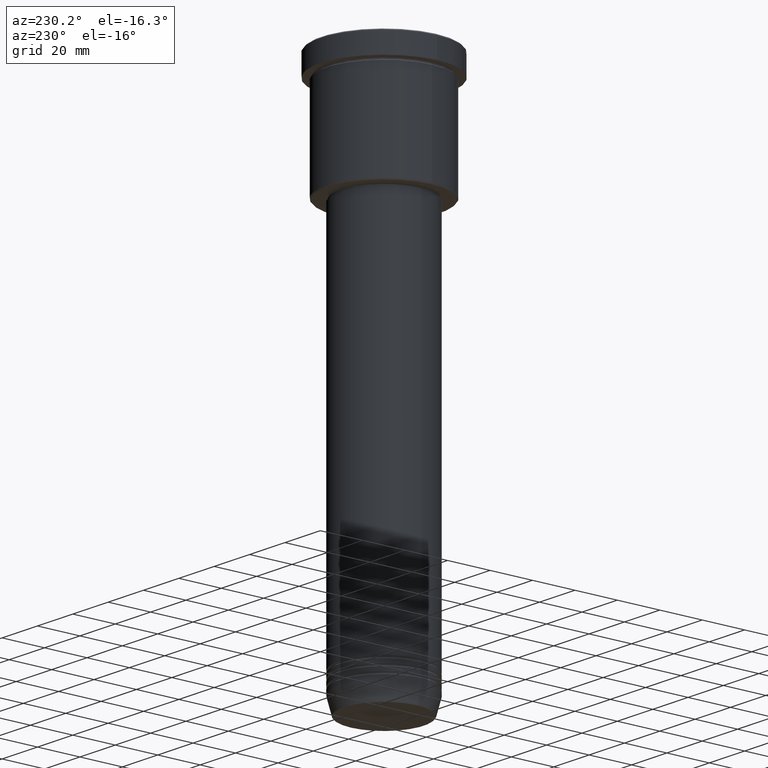
[diagram: clean part render]
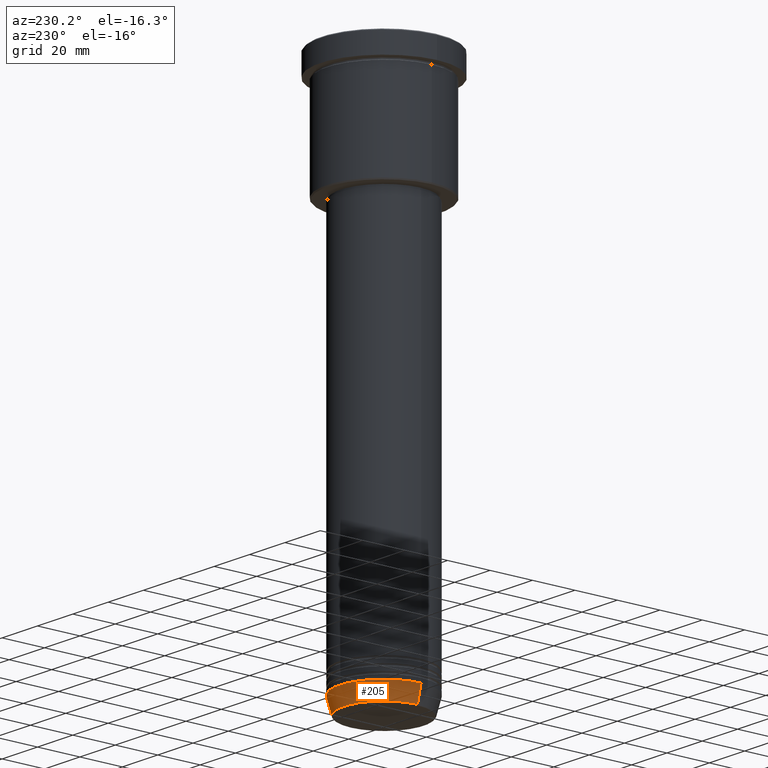
[diagram: same view with one face highlighted and labeled with its STEP entity id]
A machine part, auxiliary view. The second image highlights one B-rep face of the part: STEP entity #205.
In plain terms, the highlighted conical surface has half-angle 15 deg.
Its self-contained STEP definition (entity closure, byte-faithful):
#35 = CARTESIAN_POINT ( 'NONE',  ( 0.000000000000000000, 0.000000000000000000, -243.0000000000000284 ) ) ;
#42 = AXIS2_PLACEMENT_3D ( 'NONE', #35, #1033, #843 ) ;
#52 = CARTESIAN_POINT ( 'NONE',  ( -21.00000000000000000, 2.571758278209441661E-15, -243.0000000000000284 ) ) ;
#81 = ORIENTED_EDGE ( 'NONE', *, *, #923, .F. ) ;
#99 = ORIENTED_EDGE ( 'NONE', *, *, #1064, .F. ) ;
#129 = CARTESIAN_POINT ( 'NONE',  ( 21.00000000000000000, 0.000000000000000000, -243.0000000000000284 ) ) ;
#131 = VECTOR ( 'NONE', #1131, 1000.000000000000000 ) ;
#161 = ORIENTED_EDGE ( 'NONE', *, *, #446, .T. ) ;
#201 = CARTESIAN_POINT ( 'NONE',  ( 18.95570587970606624, 0.000000000000000000, -250.6294095225512422 ) ) ;
#205 = ADVANCED_FACE ( 'NONE', ( #1107 ), #562, .T. ) ;
#300 = CARTESIAN_POINT ( 'NONE',  ( 21.00000000000000000, 0.000000000000000000, -243.0000000000000284 ) ) ;
#350 = CIRCLE ( 'NONE', #467, 18.95570587970606624 ) ;
#397 = CARTESIAN_POINT ( 'NONE',  ( -21.00000000000000000, 2.571758278209441661E-15, -243.0000000000000284 ) ) ;
#399 = CARTESIAN_POINT ( 'NONE',  ( 0.000000000000000000, 0.000000000000000000, -243.0000000000000284 ) ) ;
#402 = LINE ( 'NONE', #397, #131 ) ;
#446 = EDGE_CURVE ( 'NONE', #622, #554, #402, .T. ) ;
#467 = AXIS2_PLACEMENT_3D ( 'NONE', #1086, #739, #939 ) ;
#525 = VERTEX_POINT ( 'NONE', #201 ) ;
#527 = AXIS2_PLACEMENT_3D ( 'NONE', #399, #781, #1044 ) ;
#554 = VERTEX_POINT ( 'NONE', #52 ) ;
#562 = CONICAL_SURFACE ( 'NONE', #42, 21.00000000000000000, 0.2617993877991500740 ) ;
#579 = EDGE_LOOP ( 'NONE', ( #870, #161, #99, #81 ) ) ;
#622 = VERTEX_POINT ( 'NONE', #868 ) ;
#720 = CIRCLE ( 'NONE', #527, 21.00000000000000000 ) ;
#739 = DIRECTION ( 'NONE',  ( -0.000000000000000000, -0.000000000000000000, 1.000000000000000000 ) ) ;
#781 = DIRECTION ( 'NONE',  ( -0.000000000000000000, -0.000000000000000000, 1.000000000000000000 ) ) ;
#794 = VECTOR ( 'NONE', #1023, 1000.000000000000000 ) ;
#829 = EDGE_CURVE ( 'NONE', #525, #622, #350, .T. ) ;
#831 = VERTEX_POINT ( 'NONE', #129 ) ;
#843 = DIRECTION ( 'NONE',  ( 1.000000000000000000, 0.000000000000000000, 0.000000000000000000 ) ) ;
#868 = CARTESIAN_POINT ( 'NONE',  ( -18.95570587970606624, 2.446581365662756125E-15, -250.6294095225512422 ) ) ;
#870 = ORIENTED_EDGE ( 'NONE', *, *, #829, .T. ) ;
#923 = EDGE_CURVE ( 'NONE', #525, #831, #1118, .T. ) ;
#939 = DIRECTION ( 'NONE',  ( 1.000000000000000000, 0.000000000000000000, 0.000000000000000000 ) ) ;
#1023 = DIRECTION ( 'NONE',  ( 0.2588190451025213501, 0.000000000000000000, 0.9659258262890680902 ) ) ;
#1033 = DIRECTION ( 'NONE',  ( -0.000000000000000000, -0.000000000000000000, 1.000000000000000000 ) ) ;
#1044 = DIRECTION ( 'NONE',  ( 1.000000000000000000, 0.000000000000000000, 0.000000000000000000 ) ) ;
#1064 = EDGE_CURVE ( 'NONE', #831, #554, #720, .T. ) ;
#1086 = CARTESIAN_POINT ( 'NONE',  ( 0.000000000000000000, 0.000000000000000000, -250.6294095225512422 ) ) ;
#1107 = FACE_OUTER_BOUND ( 'NONE', #579, .T. ) ;
#1118 = LINE ( 'NONE', #300, #794 ) ;
#1131 = DIRECTION ( 'NONE',  ( -0.2588190451025213501, 3.169619151431772337E-17, 0.9659258262890680902 ) ) ;